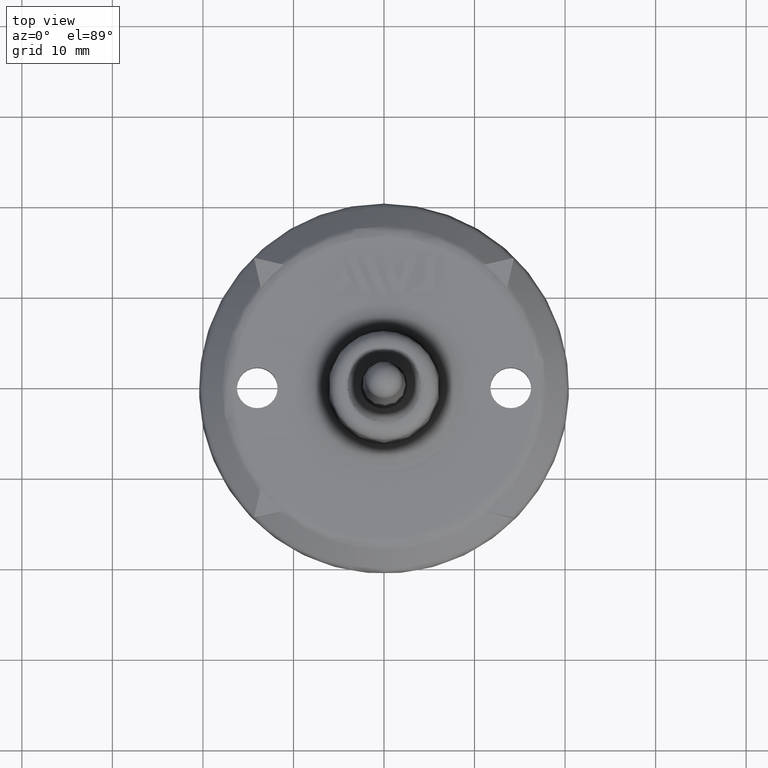
[diagram: clean part render]
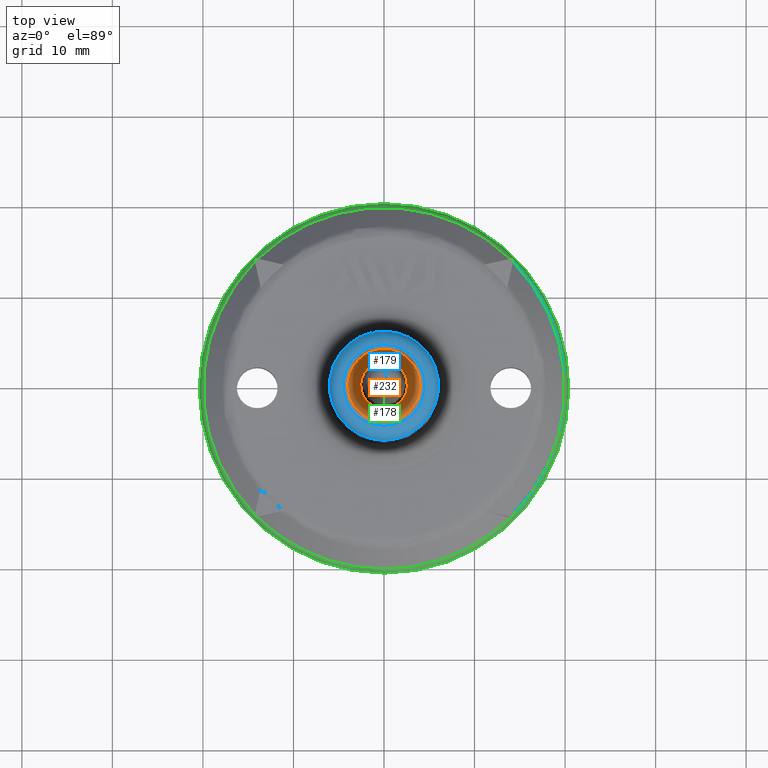
[diagram: same view with three faces highlighted in distinct colors, each labeled with its STEP entity id]
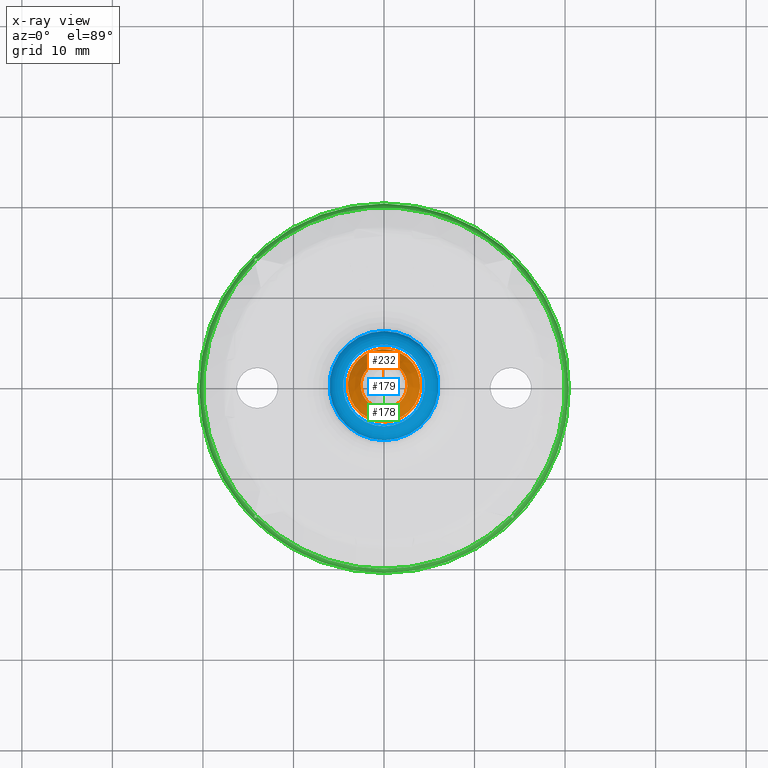
[diagram: x-ray of the same camera — body ghosted, the three highlighted faces saturated]
A machine part, top view with three faces highlighted in distinct colors.
The next image is the same camera in x-ray (body ghosted, the three faces saturated) — at least one of them is partly hidden behind the body in this view.
Their STEP definitions:

[orange] entity #232 — the highlighted conical surface has half-angle 43.511 deg.
#232 = ADVANCED_FACE( '', ( #493, #494 ), #495, .T. );
#493 = FACE_OUTER_BOUND( '', #769, .T. );
#494 = FACE_BOUND( '', #770, .T. );
#495 = CONICAL_SURFACE( '', #771, 2.57601714263118, 0.759406210990958 );
#769 = EDGE_LOOP( '', ( #1635 ) );
#770 = EDGE_LOOP( '', ( #1636 ) );
#771 = AXIS2_PLACEMENT_3D( '', #1637, #1638, #1639 );
#1635 = ORIENTED_EDGE( '', *, *, #1935, .F. );
#1636 = ORIENTED_EDGE( '', *, *, #1936, .T. );
#1637 = CARTESIAN_POINT( '', ( 1.48596331454350E-024, 6.42911502357272E-015, 21.4996279999966 ) );
#1638 = DIRECTION( '', ( -7.42616500954294E-026, 4.89772725781145E-026, -1.00000000000000 ) );
#1639 = DIRECTION( '', ( -0.951505468930490, 0.307631829620031, 8.57273341706079E-026 ) );
#1935 = EDGE_CURVE( '', #2377, #2377, #2378, .T. );
#1936 = EDGE_CURVE( '', #2379, #2379, #2380, .T. );
#2377 = VERTEX_POINT( '', #3159 );
#2378 = CIRCLE( '', #3160, 4.00000000000000 );
#2379 = VERTEX_POINT( '', #3161 );
#2380 = CIRCLE( '', #3162, 2.57601714263118 );
#3159 = CARTESIAN_POINT( '', ( -3.80602187572196, 1.23052731848013, 19.9996279999966 ) );
#3160 = AXIS2_PLACEMENT_3D( '', #3510, #3511, #3512 );
#3161 = CARTESIAN_POINT( '', ( -2.45109439927226, 0.792464866720202, 21.4996279999966 ) );
#3162 = AXIS2_PLACEMENT_3D( '', #3513, #3514, #3515 );
#3510 = CARTESIAN_POINT( '', ( 1.37457083940035E-024, 6.42911502364618E-015, 19.9996279999966 ) );
#3511 = DIRECTION( '', ( -7.42616500954294E-026, 4.89772725781145E-026, -1.00000000000000 ) );
#3512 = DIRECTION( '', ( -0.951505468930490, 0.307631829620031, 8.57273341706079E-026 ) );
#3513 = CARTESIAN_POINT( '', ( 1.48596331454350E-024, 6.42911502357272E-015, 21.4996279999966 ) );
#3514 = DIRECTION( '', ( -7.42616500954294E-026, 4.89772725781145E-026, -1.00000000000000 ) );
#3515 = DIRECTION( '', ( -0.951505468930490, 0.307631829620031, 8.57273341706079E-026 ) );

[blue] entity #179 — the highlighted toroidal blend (fillet) surface has major radius 4.5249 mm and minor (blend) radius 1.5029 mm.
#179 = ADVANCED_FACE( '', ( #366, #367 ), #368, .T. );
#366 = FACE_OUTER_BOUND( '', #642, .T. );
#367 = FACE_OUTER_BOUND( '', #643, .T. );
#368 = TOROIDAL_SURFACE( '', #644, 4.52493861201543, 1.50291900000000 );
#642 = EDGE_LOOP( '', ( #1243 ) );
#643 = EDGE_LOOP( '', ( #1244 ) );
#644 = AXIS2_PLACEMENT_3D( '', #1245, #1246, #1247 );
#1243 = ORIENTED_EDGE( '', *, *, #1871, .F. );
#1244 = ORIENTED_EDGE( '', *, *, #1872, .F. );
#1245 = CARTESIAN_POINT( '', ( -2.08040909777055E-031, 3.39767810493053E-015, 18.4967090000000 ) );
#1246 = DIRECTION( '', ( 1.12474554136660E-032, -1.83690953073357E-016, -1.00000000000000 ) );
#1247 = DIRECTION( '', ( -6.12303176911189E-017, 1.00000000000000, -1.83690953073357E-016 ) );
#1871 = EDGE_CURVE( '', #2278, #2278, #2279, .F. );
#1872 = EDGE_CURVE( '', #2280, #2280, #2281, .F. );
#2278 = VERTEX_POINT( '', #3007 );
#2279 = CIRCLE( '', #3008, 4.52493861201543 );
#2280 = VERTEX_POINT( '', #3009 );
#2281 = CIRCLE( '', #3010, 6.02762871017217 );
#3007 = CARTESIAN_POINT( '', ( -2.77063428746515E-016, 4.52493861201543, 19.9996280000000 ) );
#3008 = AXIS2_PLACEMENT_3D( '', #3421, #3422, #3423 );
#3009 = CARTESIAN_POINT( '', ( 3.69073620847951E-016, -6.02762871017217, 18.5229385532303 ) );
#3010 = AXIS2_PLACEMENT_3D( '', #3424, #3425, #3426 );
#3421 = CARTESIAN_POINT( '', ( -2.24944924219907E-031, 3.67375072843259E-015, 19.9996280000000 ) );
#3422 = DIRECTION( '', ( 1.12474554136660E-032, -1.83690953073357E-016, -1.00000000000000 ) );
#3423 = DIRECTION( '', ( -6.12303176911189E-017, 1.00000000000000, -1.83690953073357E-016 ) );
#3424 = CARTESIAN_POINT( '', ( -2.08335925507533E-031, 3.40249623656209E-015, 18.5229385532303 ) );
#3425 = DIRECTION( '', ( -1.12474554136660E-032, 1.83690953073357E-016, 1.00000000000000 ) );
#3426 = DIRECTION( '', ( 6.12303176911189E-017, -1.00000000000000, 1.83690953073357E-016 ) );

[green] entity #178 — the highlighted toroidal blend (fillet) surface has major radius 18.9073 mm and minor (blend) radius 1.5029 mm.
#178 = ADVANCED_FACE( '', ( #363, #364 ), #365, .T. );
#363 = FACE_OUTER_BOUND( '', #639, .T. );
#364 = FACE_OUTER_BOUND( '', #640, .T. );
#365 = TOROIDAL_SURFACE( '', #641, 18.9073364297665, 1.50291900000000 );
#639 = EDGE_LOOP( '', ( #1223 ) );
#640 = EDGE_LOOP( '', ( #1224, #1225, #1226, #1227, #1228, #1229, #1230, #1231, #1232, #1233, #1234, #1235, #1236, #1237, #1238, #1239 ) );
#641 = AXIS2_PLACEMENT_3D( '', #1240, #1241, #1242 );
#1223 = ORIENTED_EDGE( '', *, *, #1710, .F. );
#1224 = ORIENTED_EDGE( '', *, *, #1816, .T. );
#1225 = ORIENTED_EDGE( '', *, *, #1831, .T. );
#1226 = ORIENTED_EDGE( '', *, *, #1865, .F. );
#1227 = ORIENTED_EDGE( '', *, *, #1866, .F. );
#1228 = ORIENTED_EDGE( '', *, *, #1867, .F. );
#1229 = ORIENTED_EDGE( '', *, *, #1868, .F. );
#1230 = ORIENTED_EDGE( '', *, *, #1823, .F. );
#1231 = ORIENTED_EDGE( '', *, *, #1848, .F. );
#1232 = ORIENTED_EDGE( '', *, *, #1850, .F. );
#1233 = ORIENTED_EDGE( '', *, *, #1853, .F. );
#1234 = ORIENTED_EDGE( '', *, *, #1869, .F. );
#1235 = ORIENTED_EDGE( '', *, *, #1864, .F. );
#1236 = ORIENTED_EDGE( '', *, *, #1859, .F. );
#1237 = ORIENTED_EDGE( '', *, *, #1856, .F. );
#1238 = ORIENTED_EDGE( '', *, *, #1870, .F. );
#1239 = ORIENTED_EDGE( '', *, *, #1824, .T. );
#1240 = CARTESIAN_POINT( '', ( -1.54118230570376E-032, 2.51702483968542E-016, 1.37024975785294 ) );
#1241 = DIRECTION( '', ( -1.12474554136660E-032, 1.83690953073357E-016, 1.00000000000000 ) );
#1242 = DIRECTION( '', ( 6.12303176911189E-017, -1.00000000000000, 1.83690953073357E-016 ) );
#1710 = EDGE_CURVE( '', #2007, #2007, #2008, .F. );
#1816 = EDGE_CURVE( '', #2184, #2185, #2186, .T. );
#1823 = EDGE_CURVE( '', #2197, #2192, #2199, .T. );
#1824 = EDGE_CURVE( '', #2200, #2184, #2201, .T. );
#1831 = EDGE_CURVE( '', #2185, #2211, #2213, .T. );
#1848 = EDGE_CURVE( '', #2241, #2197, #2243, .T. );
#1850 = EDGE_CURVE( '', #2245, #2241, #2247, .T. );
#1853 = EDGE_CURVE( '', #2249, #2245, #2251, .T. );
#1856 = EDGE_CURVE( '', #2253, #2255, #2256, .T. );
#1859 = EDGE_CURVE( '', #2255, #2260, #2261, .T. );
#1864 = EDGE_CURVE( '', #2260, #2265, #2268, .T. );
#1865 = EDGE_CURVE( '', #2269, #2211, #2270, .T. );
#1866 = EDGE_CURVE( '', #2271, #2269, #2272, .T. );
#1867 = EDGE_CURVE( '', #2273, #2271, #2274, .T. );
#1868 = EDGE_CURVE( '', #2192, #2273, #2275, .T. );
#1869 = EDGE_CURVE( '', #2265, #2249, #2276, .T. );
#1870 = EDGE_CURVE( '', #2200, #2253, #2277, .T. );
#2007 = VERTEX_POINT( '', #2483 );
#2008 = CIRCLE( '', #2484, 20.4100265279233 );
#2184 = VERTEX_POINT( '', #2796 );
#2185 = VERTEX_POINT( '', #2797 );
#2186 = B_SPLINE_CURVE_WITH_KNOTS( '', 3, ( #2798, #2799, #2800, #2801, #2802, #2803, #2804, #2805, #2806, #2807 ), .UNSPECIFIED., .F., .F., ( 4, 2, 2, 2, 4 ), ( 3.31744880587179E-007, 6.65502227040388E-005, 0.000132768700527490, 0.000198987178350942, 0.000265205656174394 ), .UNSPECIFIED. );
#2192 = VERTEX_POINT( '', #2815 );
#2197 = VERTEX_POINT( '', #2823 );
#2199 = CIRCLE( '', #2828, 19.9697122692104 );
#2200 = VERTEX_POINT( '', #2829 );
#2201 = B_SPLINE_CURVE_WITH_KNOTS( '', 3, ( #2830, #2831, #2832, #2833 ), .UNSPECIFIED., .F., .F., ( 4, 4 ), ( 3.03203258012695E-007, 0.000357515224014155 ), .UNSPECIFIED. );
#2211 = VERTEX_POINT( '', #2854 );
#2213 = B_SPLINE_CURVE_WITH_KNOTS( '', 3, ( #2859, #2860, #2861, #2862 ), .UNSPECIFIED., .F., .F., ( 4, 4 ), ( 3.34228599866830E-007, 0.000357546258240777 ), .UNSPECIFIED. );
#2241 = VERTEX_POINT( '', #2909 );
#2243 = B_SPLINE_CURVE_WITH_KNOTS( '', 3, ( #2912, #2913, #2914, #2915 ), .UNSPECIFIED., .F., .F., ( 4, 4 ), ( 3.34229650452433E-007, 0.000357549681392208 ), .UNSPECIFIED. );
#2245 = VERTEX_POINT( '', #2917 );
#2247 = B_SPLINE_CURVE_WITH_KNOTS( '', 3, ( #2920, #2921, #2922, #2923, #2924, #2925, #2926, #2927, #2928, #2929 ), .UNSPECIFIED., .F., .F., ( 4, 2, 2, 2, 4 ), ( 3.31745977092659E-007, 6.65503811055852E-005, 0.000132769016234078, 0.000198987651362570, 0.000265206286491063 ), .UNSPECIFIED. );
#2249 = VERTEX_POINT( '', #2931 );
#2251 = B_SPLINE_CURVE_WITH_KNOTS( '', 3, ( #2936, #2937, #2938, #2939 ), .UNSPECIFIED., .F., .F., ( 4, 4 ), ( 3.03203187958801E-007, 0.000357518634198416 ), .UNSPECIFIED. );
#2253 = VERTEX_POINT( '', #2942 );
#2255 = VERTEX_POINT( '', #2947 );
#2256 = B_SPLINE_CURVE_WITH_KNOTS( '', 3, ( #2948, #2949, #2950, #2951 ), .UNSPECIFIED., .F., .F., ( 4, 4 ), ( 3.03203271215693E-007, 0.000357515113951420 ), .UNSPECIFIED. );
#2260 = VERTEX_POINT( '', #2957 );
#2261 = B_SPLINE_CURVE_WITH_KNOTS( '', 3, ( #2958, #2959, #2960, #2961, #2962, #2963, #2964, #2965, #2966, #2967 ), .UNSPECIFIED., .F., .F., ( 4, 2, 2, 2, 4 ), ( 3.31744822517899E-007, 6.65502161454649E-005, 0.000132768687468412, 0.000198987158791359, 0.000265205630114306 ), .UNSPECIFIED. );
#2265 = VERTEX_POINT( '', #2972 );
#2268 = B_SPLINE_CURVE_WITH_KNOTS( '', 3, ( #2979, #2980, #2981, #2982 ), .UNSPECIFIED., .F., .F., ( 4, 4 ), ( 3.34228572705602E-007, 0.000357546099269956 ), .UNSPECIFIED. );
#2269 = VERTEX_POINT( '', #2983 );
#2270 = CIRCLE( '', #2984, 19.9697122692104 );
#2271 = VERTEX_POINT( '', #2985 );
#2272 = B_SPLINE_CURVE_WITH_KNOTS( '', 3, ( #2986, #2987, #2988, #2989 ), .UNSPECIFIED., .F., .F., ( 4, 4 ), ( 3.34229168227510E-007, 0.000357548222156874 ), .UNSPECIFIED. );
#2273 = VERTEX_POINT( '', #2990 );
#2274 = B_SPLINE_CURVE_WITH_KNOTS( '', 3, ( #2991, #2992, #2993, #2994, #2995, #2996, #2997, #2998, #2999, #3000 ), .UNSPECIFIED., .F., .F., ( 4, 2, 2, 2, 4 ), ( 3.31745529692596E-007, 6.65503113848115E-005, 0.000132768877239930, 0.000198987443095049, 0.000265206008950168 ), .UNSPECIFIED. );
#2275 = B_SPLINE_CURVE_WITH_KNOTS( '', 3, ( #3001, #3002, #3003, #3004 ), .UNSPECIFIED., .F., .F., ( 4, 4 ), ( 3.03203205004470E-007, 0.000357517111831626 ), .UNSPECIFIED. );
#2276 = CIRCLE( '', #3005, 19.9697122692104 );
#2277 = CIRCLE( '', #3006, 19.9697122692104 );
#2483 = CARTESIAN_POINT( '', ( 1.24971240838891E-015, -20.4100265279233, 1.39647931108321 ) );
#2484 = AXIS2_PLACEMENT_3D( '', #3219, #3220, #3221 );
#2796 = CARTESIAN_POINT( '', ( 14.3279627451840, -14.2066262741456, 2.17414847680710 ) );
#2797 = CARTESIAN_POINT( '', ( 14.2066262861443, -14.3279627371662, 2.17414847245610 ) );
#2798 = CARTESIAN_POINT( '', ( 14.3279627451840, -14.2066262741456, 2.17414847680710 ) );
#2799 = CARTESIAN_POINT( '', ( 14.3309803896479, -14.2197027383029, 2.15622003895191 ) );
#2800 = CARTESIAN_POINT( '', ( 14.3317566230044, -14.2335935415610, 2.13903408076668 ) );
#2801 = CARTESIAN_POINT( '', ( 14.3253177757533, -14.2653593077309, 2.10825034627437 ) );
#2802 = CARTESIAN_POINT( '', ( 14.3170837260570, -14.2846451272894, 2.09406378524952 ) );
#2803 = CARTESIAN_POINT( '', ( 14.2852465087488, -14.3167018707971, 2.09378265464282 ) );
#2804 = CARTESIAN_POINT( '', ( 14.2659443928339, -14.3251092739526, 2.10777875463600 ) );
#2805 = CARTESIAN_POINT( '', ( 14.2340636031345, -14.3317483097346, 2.13848626501206 ) );
#2806 = CARTESIAN_POINT( '', ( 14.2197651209369, -14.3309947744313, 2.15613452190468 ) );
#2807 = CARTESIAN_POINT( '', ( 14.2066262861297, -14.3279627371989, 2.17414847244569 ) );
#2815 = CARTESIAN_POINT( '', ( -14.2726877393033, -13.9670967925117, 2.43332223719148 ) );
#2823 = CARTESIAN_POINT( '', ( -14.2726875503153, 13.9670969856347, 2.43332223719148 ) );
#2828 = AXIS2_PLACEMENT_3D( '', #3369, #3370, #3371 );
#2829 = CARTESIAN_POINT( '', ( 14.2726869236544, -13.9670976260064, 2.43332223719148 ) );
#2830 = CARTESIAN_POINT( '', ( 14.2726869236552, -13.9670976260096, 2.43332223719456 ) );
#2831 = CARTESIAN_POINT( '', ( 14.2933008914889, -14.0564248528400, 2.35616296750799 ) );
#2832 = CARTESIAN_POINT( '', ( 14.3118090039513, -14.1366267030350, 2.27012113008715 ) );
#2833 = CARTESIAN_POINT( '', ( 14.3279627451851, -14.2066262741505, 2.17414847681193 ) );
#2854 = CARTESIAN_POINT( '', ( 13.9670976280813, -14.2726869216240, 2.43332223719148 ) );
#2859 = CARTESIAN_POINT( '', ( 14.2066262861491, -14.3279627371673, 2.17414847246079 ) );
#2860 = CARTESIAN_POINT( '', ( 14.1366267121738, -14.3118089976925, 2.27012112771365 ) );
#2861 = CARTESIAN_POINT( '', ( 14.0564248586054, -14.2933008872232, 2.35616296651781 ) );
#2862 = CARTESIAN_POINT( '', ( 13.9670976280845, -14.2726869216247, 2.43332223719456 ) );
#2909 = CARTESIAN_POINT( '', ( -14.3279638921607, 14.2066276193982, 2.17414569406236 ) );
#2912 = CARTESIAN_POINT( '', ( -14.3279638921619, 14.2066276194031, 2.17414569406719 ) );
#2913 = CARTESIAN_POINT( '', ( -14.3118100281165, 14.1366275947392, 2.27011945533929 ) );
#2914 = CARTESIAN_POINT( '', ( -14.2933017396558, 14.0564250719805, 2.35616221075291 ) );
#2915 = CARTESIAN_POINT( '', ( -14.2726875503160, 13.9670969856379, 2.43332223719456 ) );
#2917 = CARTESIAN_POINT( '', ( -14.2066274023787, 14.3279640982974, 2.17414570420804 ) );
#2920 = CARTESIAN_POINT( '', ( -14.2066274023787, 14.3279640982974, 2.17414570420804 ) );
#2921 = CARTESIAN_POINT( '', ( -14.2197038552761, 14.3309817447881, 2.15621719007172 ) );
#2922 = CARTESIAN_POINT( '', ( -14.2335946460476, 14.3317579836984, 2.13903115297523 ) );
#2923 = CARTESIAN_POINT( '', ( -14.2653603869941, 14.3253191647275, 2.10824725066183 ) );
#2924 = CARTESIAN_POINT( '', ( -14.2846462365046, 14.3170851354530, 2.09406054413556 ) );
#2925 = CARTESIAN_POINT( '', ( -14.3167030701660, 14.2852478348605, 2.09377940366318 ) );
#2926 = CARTESIAN_POINT( '', ( -14.3251104563651, 14.2659456975006, 2.10777563417683 ) );
#2927 = CARTESIAN_POINT( '', ( -14.3317494733000, 14.2340649081034, 2.13848333230225 ) );
#2928 = CARTESIAN_POINT( '', ( -14.3309959310115, 14.2197664443348, 2.15613166540834 ) );
#2929 = CARTESIAN_POINT( '', ( -14.3279638921935, 14.2066276193837, 2.17414569405208 ) );
#2931 = CARTESIAN_POINT( '', ( -13.9670967925117, 14.2726877393033, 2.43332223719148 ) );
#2936 = CARTESIAN_POINT( '', ( -13.9670967925149, 14.2726877393040, 2.43332223719456 ) );
#2937 = CARTESIAN_POINT( '', ( -14.0564248699705, 14.2933019350447, 2.35616221306100 ) );
#2938 = CARTESIAN_POINT( '', ( -14.1366273846098, 14.3118102292201, 2.27011946087271 ) );
#2939 = CARTESIAN_POINT( '', ( -14.2066274023837, 14.3279640982985, 2.17414570421287 ) );
#2942 = CARTESIAN_POINT( '', ( 14.2726867329288, 13.9670978209050, 2.43332223719148 ) );
#2947 = CARTESIAN_POINT( '', ( 14.3279625134082, 14.2066264200638, 2.17414857449894 ) );
#2948 = CARTESIAN_POINT( '', ( 14.2726867329295, 13.9670978209081, 2.43332223719456 ) );
#2949 = CARTESIAN_POINT( '', ( 14.2933006843568, 14.0564250247155, 2.35616299464394 ) );
#2950 = CARTESIAN_POINT( '', ( 14.3118087830380, 14.1366268583532, 2.27012118960389 ) );
#2951 = CARTESIAN_POINT( '', ( 14.3279625134093, 14.2066264200688, 2.17414857450384 ) );
#2957 = CARTESIAN_POINT( '', ( 14.2066260432994, 14.3279628695248, 2.17414859408069 ) );
#2958 = CARTESIAN_POINT( '', ( 14.3279625134082, 14.2066264200638, 2.17414857449902 ) );
#2959 = CARTESIAN_POINT( '', ( 14.3309801564791, 14.2197028852222, 2.15622013999525 ) );
#2960 = CARTESIAN_POINT( '', ( 14.3317563882739, 14.2335936894514, 2.13903418539086 ) );
#2961 = CARTESIAN_POINT( '', ( 14.3253175355287, 14.2653594582188, 2.10825045978200 ) );
#2962 = CARTESIAN_POINT( '', ( 14.3170834811001, 14.2846452774442, 2.09406390780606 ) );
#2963 = CARTESIAN_POINT( '', ( 14.2852462612594, 14.3167020129221, 2.09378278973056 ) );
#2964 = CARTESIAN_POINT( '', ( 14.2659441482706, 14.3251094119249, 2.10777888742808 ) );
#2965 = CARTESIAN_POINT( '', ( 14.2340633600327, 14.3317484442545, 2.13848639253802 ) );
#2966 = CARTESIAN_POINT( '', ( 14.2197648778316, 14.3309949079071, 2.15613464653343 ) );
#2967 = CARTESIAN_POINT( '', ( 14.2066260432849, 14.3279628695576, 2.17414859407041 ) );
#2972 = CARTESIAN_POINT( '', ( 13.9670974900426, 14.2726870567072, 2.43332223719148 ) );
#2979 = CARTESIAN_POINT( '', ( 14.2066260433043, 14.3279628695259, 2.17414859408551 ) );
#2980 = CARTESIAN_POINT( '', ( 14.1366264948215, 14.3118091296622, 2.27012120028558 ) );
#2981 = CARTESIAN_POINT( '', ( 14.0564246767811, 14.2933010202057, 2.35616299910018 ) );
#2982 = CARTESIAN_POINT( '', ( 13.9670974900457, 14.2726870567079, 2.43332223719456 ) );
#2983 = CARTESIAN_POINT( '', ( -13.9670976280813, -14.2726869216240, 2.43332223719148 ) );
#2984 = AXIS2_PLACEMENT_3D( '', #3412, #3413, #3414 );
#2985 = CARTESIAN_POINT( '', ( -14.2066274403629, -14.3279630035242, 2.17414688996642 ) );
#2986 = CARTESIAN_POINT( '', ( -14.2066274403679, -14.3279630035253, 2.17414688997124 ) );
#2987 = CARTESIAN_POINT( '', ( -14.1366276006046, -14.3118092027149, 2.27012017616977 ) );
#2988 = CARTESIAN_POINT( '', ( -14.0564253560468, -14.2933010020173, 2.35616253683682 ) );
#2989 = CARTESIAN_POINT( '', ( -13.9670976280845, -14.2726869216247, 2.43332223719456 ) );
#2990 = CARTESIAN_POINT( '', ( -14.3279638917628, -14.2066265073967, 2.17414693127489 ) );
#2991 = CARTESIAN_POINT( '', ( -14.3279638917628, -14.2066265073967, 2.17414693127489 ) );
#2992 = CARTESIAN_POINT( '', ( -14.3309815391736, -14.2197029642818, 2.15621845027957 ) );
#2993 = CARTESIAN_POINT( '', ( -14.3317577775590, -14.2335937596880, 2.13903244729643 ) );
#2994 = CARTESIAN_POINT( '', ( -14.3253189525873, -14.2653595090930, 2.10824861570358 ) );
#2995 = CARTESIAN_POINT( '', ( -14.3170849201230, -14.2846453441122, 2.09406196844732 ) );
#2996 = CARTESIAN_POINT( '', ( -14.2852476649915, -14.3167021445308, 2.09378081502471 ) );
#2997 = CARTESIAN_POINT( '', ( -14.2659455343712, -14.3251095452051, 2.10777698407534 ) );
#2998 = CARTESIAN_POINT( '', ( -14.2340647431923, -14.3317485767881, 2.13848459647313 ) );
#2999 = CARTESIAN_POINT( '', ( -14.2197662704462, -14.3309950397026, 2.15613289584340 ) );
#3000 = CARTESIAN_POINT( '', ( -14.2066274403485, -14.3279630035570, 2.17414688995613 ) );
#3001 = CARTESIAN_POINT( '', ( -14.2726877393041, -13.9670967925149, 2.43332223719456 ) );
#3002 = CARTESIAN_POINT( '', ( -14.2933018460330, -14.0564244842534, 2.35616254623663 ) );
#3003 = CARTESIAN_POINT( '', ( -14.3118100702452, -14.1366266957192, 2.27012019870226 ) );
#3004 = CARTESIAN_POINT( '', ( -14.3279638917640, -14.2066265074016, 2.17414693127971 ) );
#3005 = AXIS2_PLACEMENT_3D( '', #3415, #3416, #3417 );
#3006 = AXIS2_PLACEMENT_3D( '', #3418, #3419, #3420 );
#3219 = CARTESIAN_POINT( '', ( -1.57068387875154E-032, 2.56520615600098E-016, 1.39647931108320 ) );
#3220 = DIRECTION( '', ( -1.12474554136660E-032, 1.83690953073357E-016, 1.00000000000000 ) );
#3221 = DIRECTION( '', ( 6.12303176911189E-017, -1.00000000000000, 1.83690953073357E-016 ) );
#3369 = CARTESIAN_POINT( '', ( -2.73686833698932E-032, 4.46979280884295E-016, 2.43332223719148 ) );
#3370 = DIRECTION( '', ( -1.12474554136660E-032, 1.83690953073357E-016, 1.00000000000000 ) );
#3371 = DIRECTION( '', ( 6.12303176911189E-017, -1.00000000000000, 1.83690953073357E-016 ) );
#3412 = CARTESIAN_POINT( '', ( -2.73686833698932E-032, 4.46979280884295E-016, 2.43332223719148 ) );
#3413 = DIRECTION( '', ( -1.12474554136660E-032, 1.83690953073357E-016, 1.00000000000000 ) );
#3414 = DIRECTION( '', ( 6.12303176911189E-017, -1.00000000000000, 1.83690953073357E-016 ) );
#3415 = CARTESIAN_POINT( '', ( -2.73686833698932E-032, 4.46979280884295E-016, 2.43332223719148 ) );
#3416 = DIRECTION( '', ( -1.12474554136660E-032, 1.83690953073357E-016, 1.00000000000000 ) );
#3417 = DIRECTION( '', ( 6.12303176911189E-017, -1.00000000000000, 1.83690953073357E-016 ) );
#3418 = CARTESIAN_POINT( '', ( -2.73686833698932E-032, 4.46979280884295E-016, 2.43332223719148 ) );
#3419 = DIRECTION( '', ( -1.12474554136660E-032, 1.83690953073357E-016, 1.00000000000000 ) );
#3420 = DIRECTION( '', ( 6.12303176911189E-017, -1.00000000000000, 1.83690953073357E-016 ) );